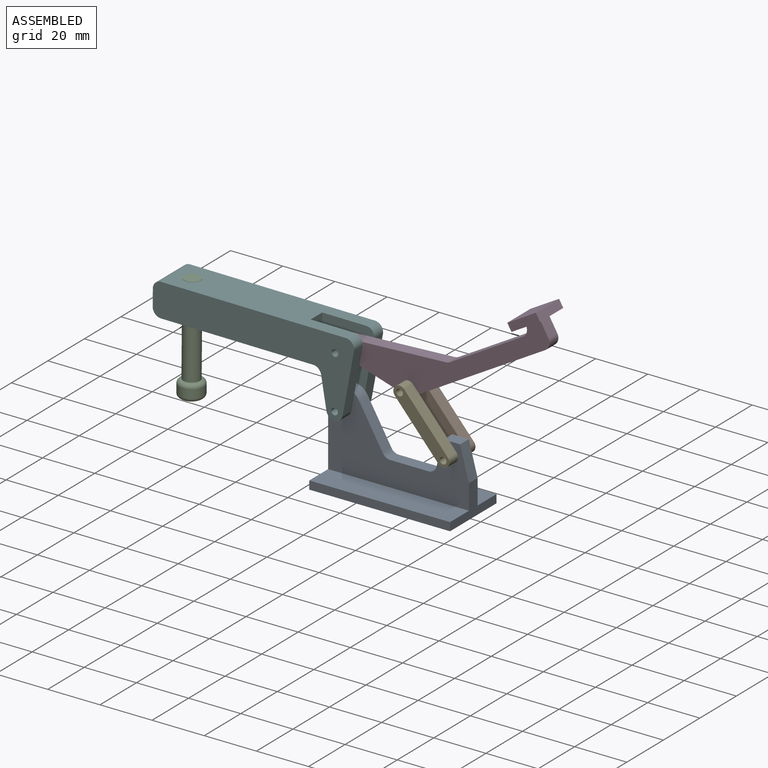
[diagram: assembled view]
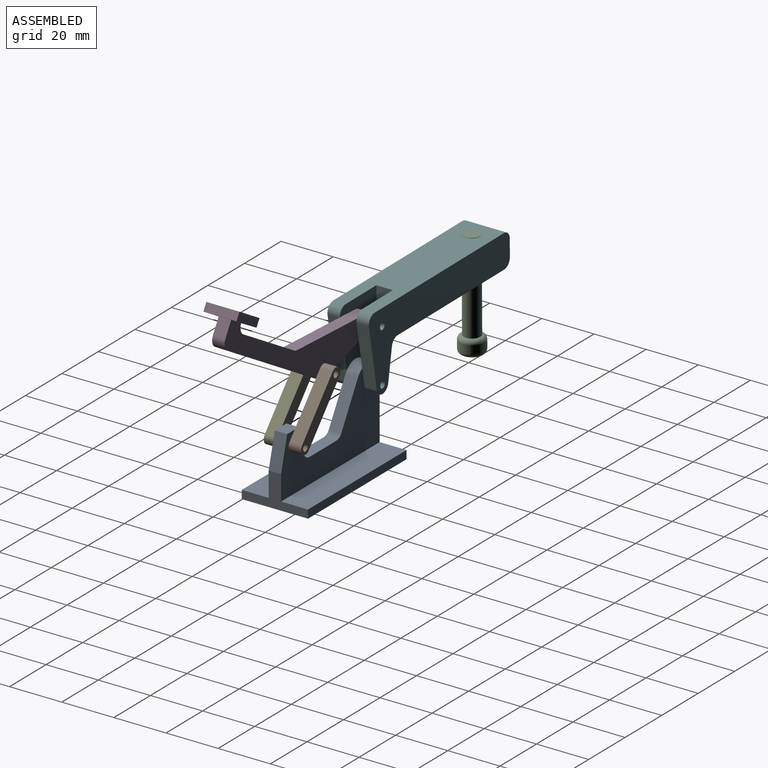
[diagram: assembled view, second angle]
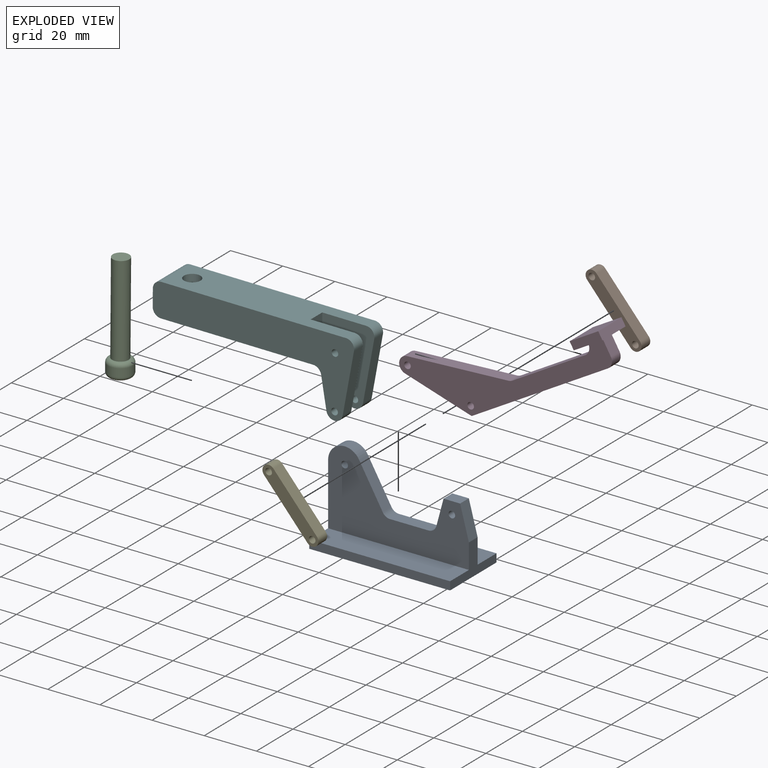
[diagram: exploded view]
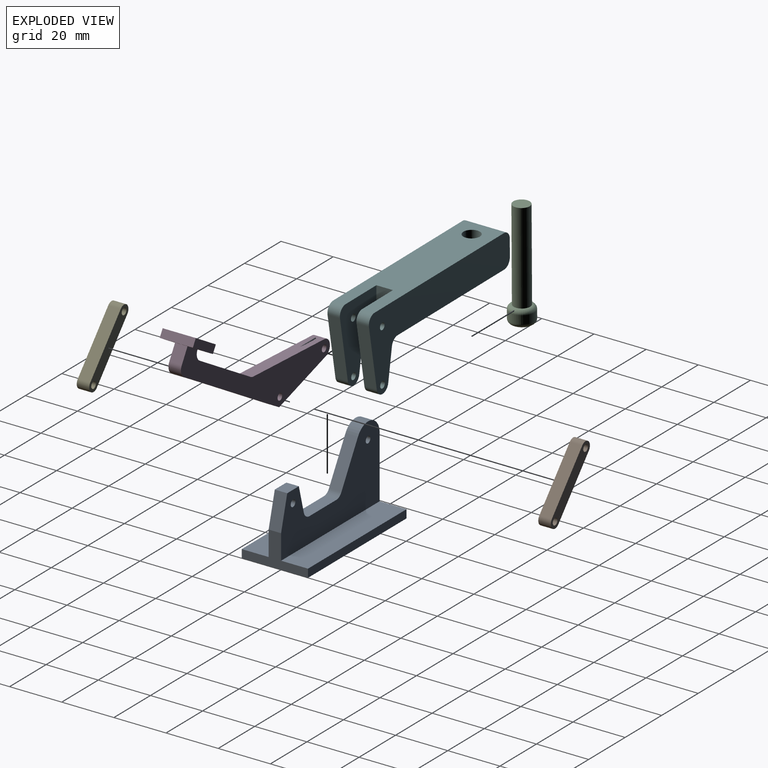
[diagram: exploded view, second angle]
ASSEMBLY  parts=6 mates=7
PART A: 19 faces, bbox 54x25.4x33.3 mm
  f0: plane 53.98x10.31mm, normal (0,0,1), area 556.6mm2, adj f1,f3,f6,f18
  f1: plane 26.92x25.4mm, normal (-1,0,0), area 194.1mm2, adj f0,f2,f4,f5,f6,f14,f17,f18
  f2: plane 53.98x25.4mm, normal (0,0,-1), area 1371mm2, adj f1,f3,f5,f6
  f3: plane 25.4x12.7mm, normal (1,0,0), area 126.1mm2, adj f0,f2,f4,f5,f6,f7,f17,f18
  f4: plane 53.98x10.31mm, normal (0,0,1), area 556.6mm2, adj f1,f3,f5,f17
  f5: plane 53.98x3.18mm, normal (0,-1,0), area 171.4mm2, adj f1,f2,f3,f4
  f6: plane 53.98x3.18mm, normal (0,1,0), area 171.4mm2, adj f0,f1,f2,f3
  f7: plane 12.57x4.78mm, normal (0.97,0,0.26), area 62.2mm2, adj f3,f8,f17,f18
  f8: plane 6.35x4.78mm, normal (0,0,1), area 30.3mm2, adj f7,f9,f17,f18
  f9: plane 10.22x4.78mm, normal (-0.97,0,0.26), area 50.5mm2, adj f8,f10,f17,f18
  f10: cylinder r=3.17mm len=4.78mm, axis (0,1,0), area 19.8mm2, adj f9,f11,f17,f18
  f11: plane 14.72x4.78mm, normal (0,0,1), area 70.3mm2, adj f10,f12,f17,f18
  f12: cylinder r=3.17mm len=4.78mm, axis (0,1,0), area 15.9mm2, adj f11,f13,f17,f18
  f13: plane 15.81x9.13mm, normal (0.87,0,0.5), area 87.2mm2, adj f12,f14,f17,f18
  f14: cylinder r=6.35mm len=11.85mm, axis (0,1,0), area 79.4mm2, adj f1,f13,f17,f18
  f15: cylinder r=1.27mm len=4.78mm, axis (0,1,0), area 38.1mm2, adj f17,f18
  f16: cylinder r=1.27mm len=4.78mm, axis (0,1,0), area 38.1mm2, adj f17,f18
  f17: plane 53.98x30.1mm, normal (0,-1,0), area 945.3mm2, adj f1,f3,f4,f7,f8,f9,f10,f11
  f18: plane 53.98x30.1mm, normal (0,1,0), area 945.3mm2, adj f0,f1,f3,f7,f8,f9,f10,f11
PART B: 8 faces, bbox 28.9x4.8x12.6 mm
  f0: plane 24.17x7.8mm, normal (-0.31,0,-0.95), area 121.3mm2, adj f1,f3,f6,f7
  f1: cylinder r=2.39mm len=4.78mm, axis (0,1,0), area 35.8mm2, adj f0,f2,f6,f7
  f2: plane 24.17x7.8mm, normal (0.31,0,0.95), area 121.3mm2, adj f1,f3,f6,f7
  f3: cylinder r=2.39mm len=4.78mm, axis (0,1,0), area 35.8mm2, adj f0,f2,f6,f7
  f4: cylinder r=1.27mm len=4.78mm, axis (0,1,0), area 38.1mm2, adj f6,f7
  f5: cylinder r=1.27mm len=4.78mm, axis (0,1,0), area 38.1mm2, adj f6,f7
  f6: plane 28.95x12.58mm, normal (0,-1,0), area 129.1mm2, adj f0,f1,f2,f3,f4,f5
  f7: plane 28.95x12.58mm, normal (0,1,0), area 129.1mm2, adj f0,f1,f2,f3,f4,f5
PART C: 6 faces, bbox 10.3x10.3x41.3 mm
  f0: cylinder r=3.17mm len=34.93mm, axis (0,0,-1), area 696.7mm2, adj f1,f5
  f1: plane 6.35x6.35mm, normal (0,0,1), area 31.7mm2, adj f0
  f2: cylinder r=4.76mm len=9.53mm, axis (0,0,-1), area 94.2mm2, adj f4,f5
  f3: plane 6.32x6.32mm, normal (0,0,-1), area 31.4mm2, adj f4
  f4: torus R=3.16mm, axis (0,0,1), area 66mm2, adj f2,f3
  f5: torus R=3.16mm, axis (0,0,1), area 65.8mm2, adj f0,f2
PART D: 19 faces, bbox 85.7x12.7x25.1 mm
  f0: plane 82.55x25.06mm, normal (0,-1,0), area 746.7mm2, adj f2,f3,f4,f5,f6,f7,f8,f9
  f1: plane 82.55x25.06mm, normal (0,1,0), area 746.7mm2, adj f2,f3,f4,f5,f6,f7,f8,f9
  f2: plane 12.7x12.7mm, normal (0,0,-1), area 131mm2, adj f0,f1,f3,f11,f12,f15,f17,f18
  f3: cylinder r=3.17mm len=4.78mm, axis (0,1,0), area 23.8mm2, adj f0,f1,f2,f4
  f4: plane 32.35x4.78mm, normal (0,0,1), area 154.5mm2, adj f0,f1,f3,f5
  f5: cylinder r=3.17mm len=4.78mm, axis (0,1,0), area 7.3mm2, adj f0,f1,f4,f6
  f6: plane 34.56x17.99mm, normal (0.46,0,0.89), area 186.1mm2, adj f0,f1,f5,f7
  f7: cylinder r=3.17mm len=5.32mm, axis (0,1,0), area 42.3mm2, adj f0,f1,f6,f8
  f8: plane 19.74x18.09mm, normal (-0.74,0,-0.68), area 127.9mm2, adj f0,f1,f7,f9
  f9: plane 60.45x4.78mm, normal (0,0,-1), area 288.7mm2, adj f0,f1,f8,f10
  f10: cylinder r=3.17mm len=4.78mm, axis (0,1,0), area 23.8mm2, adj f0,f1,f9,f11
  f11: plane 6.35x4.78mm, normal (1,0,0), area 30.3mm2, adj f0,f1,f2,f10
  f12: plane 12.7x3.18mm, normal (1,0,0), area 40.3mm2, adj f2,f13,f17,f18
  f13: plane 12.7x12.7mm, normal (0,0,1), area 161.3mm2, adj f12,f15,f17,f18
  f14: cylinder r=1.27mm len=4.78mm, axis (0,1,0), area 38.1mm2, adj f0,f1
  f15: plane 12.7x3.18mm, normal (-1,0,0), area 40.3mm2, adj f2,f13,f17,f18
  f16: cylinder r=1.27mm len=4.78mm, axis (0,1,0), area 38.1mm2, adj f0,f1
  f17: plane 12.7x3.18mm, normal (0,1,0), area 40.3mm2, adj f2,f12,f13,f15
  f18: plane 12.7x3.18mm, normal (0,-1,0), area 40.3mm2, adj f2,f12,f13,f15
PART E: same geometry as B
PART F: 25 faces, bbox 77.2x15.9x29.8 mm
  f0: cylinder r=3.17mm len=4.76mm, axis (0,1,0), area 21.1mm2, adj f1,f11,f20,f21
  f1: plane 11.9x4.76mm, normal (-0.98,0,-0.17), area 57.5mm2, adj f0,f2,f20,f21
  f2: cylinder r=3.17mm len=6.25mm, axis (0,1,0), area 42.2mm2, adj f1,f3,f20,f21
  f3: plane 23.5x4.76mm, normal (0.98,0,-0.17), area 113.6mm2, adj f2,f5,f20,f21
  f4: cylinder r=1.27mm len=4.76mm, axis (0,1,0), area 38mm2, adj f20,f21
  f5: cylinder r=3.17mm len=4.76mm, axis (0,1,0), area 26.4mm2, adj f3,f7,f20,f21
  f6: cylinder r=1.27mm len=4.76mm, axis (0,1,0), area 38mm2, adj f20,f21
  f7: plane 70.82x15.88mm, normal (0,0,1), area 985.6mm2, adj f5,f8,f17,f19,f20,f21,f22,f23
  f8: cylinder r=3.17mm len=15.88mm, axis (0,1,0), area 79.2mm2, adj f7,f9,f19,f20
  f9: plane 15.88x6.35mm, normal (-1,0,0), area 100.8mm2, adj f8,f10,f19,f20
  f10: cylinder r=3.17mm len=15.88mm, axis (0,1,0), area 79.2mm2, adj f9,f11,f19,f20
  f11: plane 58.32x15.88mm, normal (0,0,-1), area 866.6mm2, adj f0,f10,f12,f19,f20,f21,f22,f23
  f12: cylinder r=3.17mm len=4.76mm, axis (0,1,0), area 21.1mm2, adj f11,f13,f19,f23
  f13: plane 11.9x4.76mm, normal (-0.98,0,-0.17), area 57.5mm2, adj f12,f14,f19,f23
  f14: cylinder r=3.17mm len=6.25mm, axis (0,1,0), area 42.2mm2, adj f13,f15,f19,f23
  f15: plane 23.5x4.76mm, normal (0.98,0,-0.17), area 113.6mm2, adj f14,f17,f19,f23
  f16: cylinder r=1.27mm len=4.76mm, axis (0,1,0), area 38mm2, adj f19,f23
  f17: cylinder r=3.17mm len=4.76mm, axis (0,1,0), area 26.4mm2, adj f7,f15,f19,f23
  f18: cylinder r=1.27mm len=4.76mm, axis (0,1,0), area 38mm2, adj f19,f23
  f19: plane 77.17x29.85mm, normal (0,-1,0), area 1097.6mm2, adj f7,f8,f9,f10,f11,f12,f13,f14
  f20: plane 77.17x29.85mm, normal (0,1,0), area 1097.6mm2, adj f0,f1,f2,f3,f4,f5,f6,f7
  f21: plane 29.85x20.02mm, normal (0,-1,0), area 376.2mm2, adj f0,f1,f2,f3,f4,f5,f6,f7
  f22: plane 12.7x6.35mm, normal (1,0,0), area 80.6mm2, adj f7,f11,f21,f23
  f23: plane 29.85x20.02mm, normal (0,1,0), area 376.2mm2, adj f7,f11,f12,f13,f14,f15,f16,f17
  f24: cylinder r=3.17mm len=12.7mm, axis (0,0,1), area 253.4mm2, adj f7,f11
PLACE A t=(-2.47,20.86,-6.75)mm fixed
PLACE B rot(axis=(0,1,0),31deg) t=(-10.15,30.41,6.73)mm
PLACE C rot(axis=(0,0.01,-1),38.2deg) t=(-83.54,20.86,6.12)mm
PLACE D rot(axis=(0,-1,0),30.3deg) t=(18.83,20.86,10.27)mm
PLACE E rot(axis=(0,1,0),31deg) t=(-10.15,20.86,6.73)mm
PLACE F rot(axis=(0,1,0),0.4deg) t=(-2.68,20.86,-6.91)mm
MATE revolute B.f3 <-> D.f16  axis (0,-1,0) through (1.28,23.25,32.97)mm
MATE revolute D.f7 <-> F.f4  axis (0,-1,0) through (-22.96,18.48,40.49)mm
MATE revolute E.f3 <-> D.f16  axis (0,1,0) through (1.28,18.48,32.97)mm
MATE revolute F.f2 <-> A.f14  axis (0,1,0) through (-23.11,17.69,20.17)mm
MATE revolute A.f15 <-> B.f1  axis (0,1,0) through (17.97,23.25,13.82)mm
MATE revolute E.f1 <-> A.f15  axis (0,1,0) through (17.97,18.48,13.82)mm
MATE cylindrical C.f0 <-> F.f24  axis (-0.01,0,-1) through (-83.23,20.86,47.4)mm
